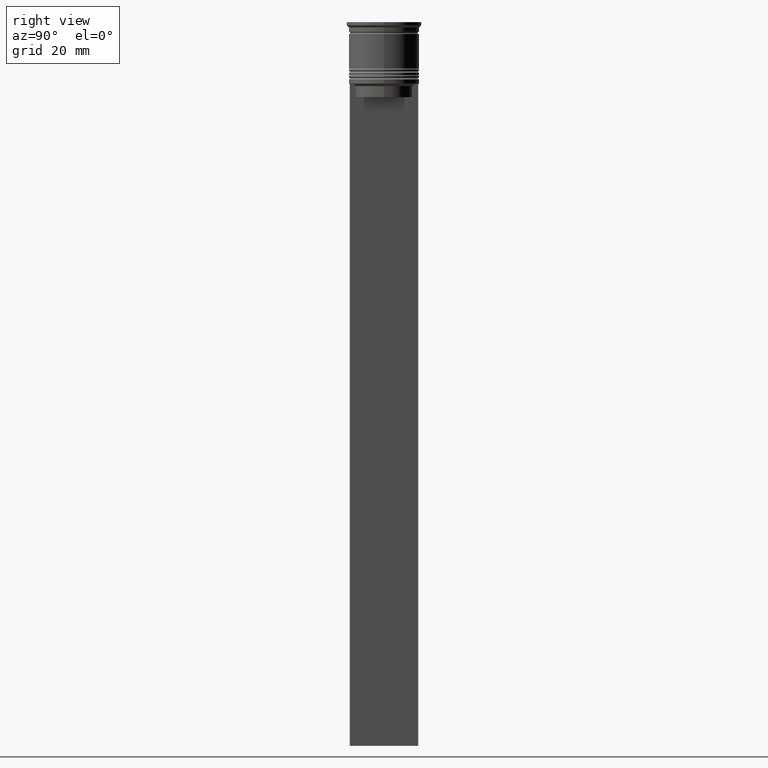
[diagram: clean part render]
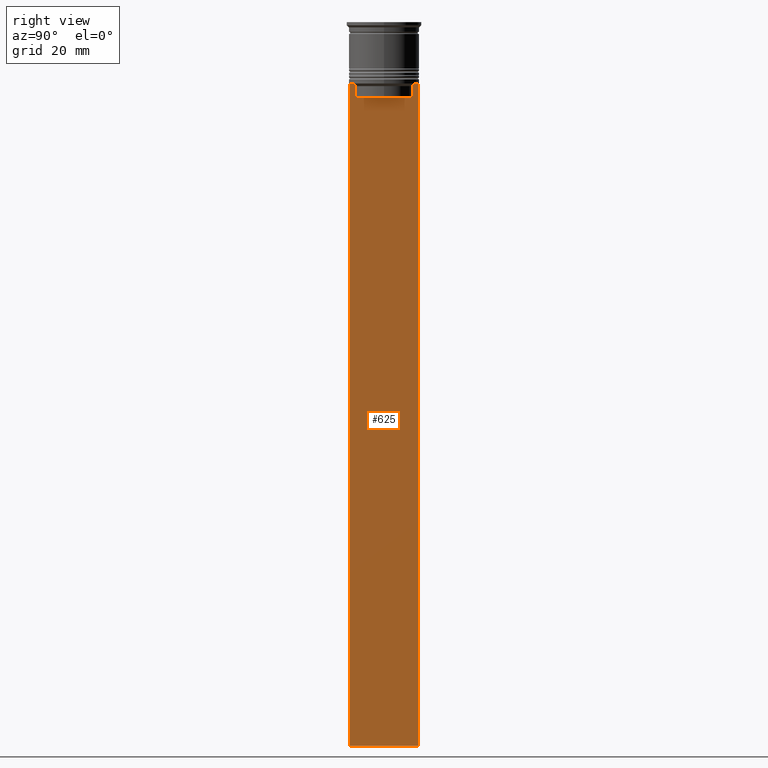
[diagram: same view with one face highlighted and labeled with its STEP entity id]
A machine part, right view. The second image highlights one B-rep face of the part: STEP entity #625.
In plain terms, the highlighted planar face has unit normal (-1, 0, 0).
Its self-contained STEP definition (entity closure, byte-faithful):
#2 = EDGE_CURVE ( 'NONE', #1476, #1979, #1790, .T. ) ;
#6 = CARTESIAN_POINT ( 'NONE',  ( 0.5000000000000001110, -7.749999999999999112, -14.00000000000000178 ) ) ;
#17 = ORIENTED_EDGE ( 'NONE', *, *, #602, .T. ) ;
#38 = CARTESIAN_POINT ( 'NONE',  ( 0.5000000000000001110, 6.399999999999999467, -17.00000000000000000 ) ) ;
#54 = EDGE_CURVE ( 'NONE', #815, #1476, #2320, .T. ) ;
#98 = LINE ( 'NONE', #282, #2002 ) ;
#114 = CARTESIAN_POINT ( 'NONE',  ( 0.5000000000000001110, -7.749999999999999112, -14.00000000000000178 ) ) ;
#140 = DIRECTION ( 'NONE',  ( 0.000000000000000000, 0.000000000000000000, -1.000000000000000000 ) ) ;
#153 = ORIENTED_EDGE ( 'NONE', *, *, #2068, .T. ) ;
#216 = CARTESIAN_POINT ( 'NONE',  ( 0.5000000000000001110, 7.750000000000002665, -163.9999999999999716 ) ) ;
#220 = DIRECTION ( 'NONE',  ( 0.000000000000000000, 1.000000000000000000, 0.000000000000000000 ) ) ;
#230 = CARTESIAN_POINT ( 'NONE',  ( 0.5000000000000001110, -7.749999999999999112, -163.9999999999999716 ) ) ;
#256 = LINE ( 'NONE', #1481, #468 ) ;
#282 = CARTESIAN_POINT ( 'NONE',  ( 0.5000000000000001110, -7.749999999999999112, 1.532224567009066840 ) ) ;
#332 = ORIENTED_EDGE ( 'NONE', *, *, #1128, .T. ) ;
#344 = VERTEX_POINT ( 'NONE', #114 ) ;
#348 = ORIENTED_EDGE ( 'NONE', *, *, #871, .F. ) ;
#357 = ORIENTED_EDGE ( 'NONE', *, *, #1312, .T. ) ;
#390 = B_SPLINE_CURVE_WITH_KNOTS ( 'NONE', 3,
 ( #546, #1883, #952, #1122 ),
 .UNSPECIFIED., .F., .F.,
 ( 4, 4 ),
 ( 0.02996184199614751464, 0.03067452609193705923 ),
 .UNSPECIFIED. ) ;
#445 = LINE ( 'NONE', #1192, #1842 ) ;
#454 = PLANE ( 'NONE',  #1996 ) ;
#468 = VECTOR ( 'NONE', #1823, 1000.000000000000000 ) ;
#471 = VECTOR ( 'NONE', #1855, 1000.000000000000000 ) ;
#546 = CARTESIAN_POINT ( 'NONE',  ( 0.5000000000000001110, -6.380438856379708312, -14.50000000000000000 ) ) ;
#548 = LINE ( 'NONE', #38, #471 ) ;
#595 = VECTOR ( 'NONE', #776, 1000.000000000000000 ) ;
#600 = CARTESIAN_POINT ( 'NONE',  ( 0.5000000000000001110, -6.380438856379708312, -14.50000000000000000 ) ) ;
#602 = EDGE_CURVE ( 'NONE', #1111, #815, #445, .T. ) ;
#625 = ADVANCED_FACE ( 'NONE', ( #2136 ), #454, .F. ) ;
#640 = CARTESIAN_POINT ( 'NONE',  ( 0.5000000000000001110, 6.380438856379708312, -14.50000000000000000 ) ) ;
#757 = DIRECTION ( 'NONE',  ( 0.000000000000000000, 0.000000000000000000, -1.000000000000000000 ) ) ;
#776 = DIRECTION ( 'NONE',  ( 0.000000000000000000, -1.000000000000000000, 0.000000000000000000 ) ) ;
#815 = VERTEX_POINT ( 'NONE', #2248 ) ;
#871 = EDGE_CURVE ( 'NONE', #1111, #1152, #256, .T. ) ;
#949 = CARTESIAN_POINT ( 'NONE',  ( 0.5000000000000001110, -6.380438856379708312, 0.000000000000000000 ) ) ;
#952 = CARTESIAN_POINT ( 'NONE',  ( 0.5000000000000001110, -6.714736947305993908, -14.16668390685738821 ) ) ;
#957 = ORIENTED_EDGE ( 'NONE', *, *, #54, .T. ) ;
#960 = EDGE_LOOP ( 'NONE', ( #17, #957, #1239, #332, #153, #1511, #1600, #357, #1700, #348 ) ) ;
#999 = DIRECTION ( 'NONE',  ( 0.000000000000000000, -1.000000000000000000, 0.000000000000000000 ) ) ;
#1111 = VERTEX_POINT ( 'NONE', #1123 ) ;
#1122 = CARTESIAN_POINT ( 'NONE',  ( 0.5000000000000001110, -6.881860213634098500, -14.00000000000000178 ) ) ;
#1123 = CARTESIAN_POINT ( 'NONE',  ( 0.5000000000000001110, 7.750000000000002665, -14.00000000000000178 ) ) ;
#1128 = EDGE_CURVE ( 'NONE', #1979, #1365, #548, .T. ) ;
#1152 = VERTEX_POINT ( 'NONE', #216 ) ;
#1183 = LINE ( 'NONE', #949, #2120 ) ;
#1192 = CARTESIAN_POINT ( 'NONE',  ( 0.5000000000000001110, -7.749999999999999112, -14.00000000000000178 ) ) ;
#1239 = ORIENTED_EDGE ( 'NONE', *, *, #2, .T. ) ;
#1312 = EDGE_CURVE ( 'NONE', #344, #1961, #98, .T. ) ;
#1330 = LINE ( 'NONE', #6, #595 ) ;
#1365 = VERTEX_POINT ( 'NONE', #1644 ) ;
#1375 = CARTESIAN_POINT ( 'NONE',  ( 0.5000000000000001110, 6.714736947114692711, -14.16668390704818847 ) ) ;
#1441 = VERTEX_POINT ( 'NONE', #1620 ) ;
#1456 = EDGE_CURVE ( 'NONE', #2116, #1441, #390, .T. ) ;
#1460 = VECTOR ( 'NONE', #220, 1000.000000000000000 ) ;
#1476 = VERTEX_POINT ( 'NONE', #1870 ) ;
#1481 = CARTESIAN_POINT ( 'NONE',  ( 0.5000000000000001110, 7.750000000000002665, 1.532224567009066840 ) ) ;
#1486 = CARTESIAN_POINT ( 'NONE',  ( 0.5000000000000001110, -7.749999999999999112, -163.9999999999999716 ) ) ;
#1500 = CARTESIAN_POINT ( 'NONE',  ( 0.5000000000000001110, 6.380438856379708312, -17.00000000000000000 ) ) ;
#1511 = ORIENTED_EDGE ( 'NONE', *, *, #1456, .T. ) ;
#1528 = EDGE_CURVE ( 'NONE', #1441, #344, #1330, .T. ) ;
#1552 = LINE ( 'NONE', #230, #1460 ) ;
#1589 = CARTESIAN_POINT ( 'NONE',  ( 0.5000000000000001110, -7.749999999999999112, 1.532224567009066840 ) ) ;
#1600 = ORIENTED_EDGE ( 'NONE', *, *, #1528, .T. ) ;
#1620 = CARTESIAN_POINT ( 'NONE',  ( 0.5000000000000001110, -6.881860213634098500, -14.00000000000000178 ) ) ;
#1644 = CARTESIAN_POINT ( 'NONE',  ( 0.5000000000000001110, -6.380438856379708312, -17.00000000000000000 ) ) ;
#1678 = EDGE_CURVE ( 'NONE', #1961, #1152, #1552, .T. ) ;
#1700 = ORIENTED_EDGE ( 'NONE', *, *, #1678, .T. ) ;
#1790 = LINE ( 'NONE', #2349, #1994 ) ;
#1801 = CARTESIAN_POINT ( 'NONE',  ( 0.5000000000000001110, 6.881860213634098500, -14.00000000000000178 ) ) ;
#1823 = DIRECTION ( 'NONE',  ( 0.000000000000000000, 0.000000000000000000, -1.000000000000000000 ) ) ;
#1842 = VECTOR ( 'NONE', #999, 1000.000000000000000 ) ;
#1855 = DIRECTION ( 'NONE',  ( 0.000000000000000000, -1.000000000000000000, 0.000000000000000000 ) ) ;
#1870 = CARTESIAN_POINT ( 'NONE',  ( 0.5000000000000001110, 6.380438856379708312, -14.50000000000000000 ) ) ;
#1883 = CARTESIAN_POINT ( 'NONE',  ( 0.5000000000000001110, -6.547597841511247019, -14.33335192438652150 ) ) ;
#1961 = VERTEX_POINT ( 'NONE', #1486 ) ;
#1979 = VERTEX_POINT ( 'NONE', #1500 ) ;
#1994 = VECTOR ( 'NONE', #757, 1000.000000000000000 ) ;
#1996 = AXIS2_PLACEMENT_3D ( 'NONE', #1589, #2148, #2031 ) ;
#2002 = VECTOR ( 'NONE', #140, 1000.000000000000000 ) ;
#2031 = DIRECTION ( 'NONE',  ( 0.000000000000000000, 0.000000000000000000, 1.000000000000000000 ) ) ;
#2068 = EDGE_CURVE ( 'NONE', #1365, #2116, #1183, .T. ) ;
#2097 = DIRECTION ( 'NONE',  ( -0.000000000000000000, -0.000000000000000000, 1.000000000000000000 ) ) ;
#2116 = VERTEX_POINT ( 'NONE', #600 ) ;
#2120 = VECTOR ( 'NONE', #2097, 1000.000000000000000 ) ;
#2136 = FACE_OUTER_BOUND ( 'NONE', #960, .T. ) ;
#2148 = DIRECTION ( 'NONE',  ( -1.000000000000000000, 0.000000000000000000, 0.000000000000000000 ) ) ;
#2248 = CARTESIAN_POINT ( 'NONE',  ( 0.5000000000000001110, 6.881860213634098500, -14.00000000000000178 ) ) ;
#2305 = CARTESIAN_POINT ( 'NONE',  ( 0.5000000000000001110, 6.547597841304911626, -14.33335192459222718 ) ) ;
#2320 = B_SPLINE_CURVE_WITH_KNOTS ( 'NONE', 3,
 ( #1801, #1375, #2305, #640 ),
 .UNSPECIFIED., .F., .F.,
 ( 4, 4 ),
 ( 0.01172465562756038263, 0.01243276816391822651 ),
 .UNSPECIFIED. ) ;
#2349 = CARTESIAN_POINT ( 'NONE',  ( 0.5000000000000001110, 6.380438856379708312, 0.000000000000000000 ) ) ;